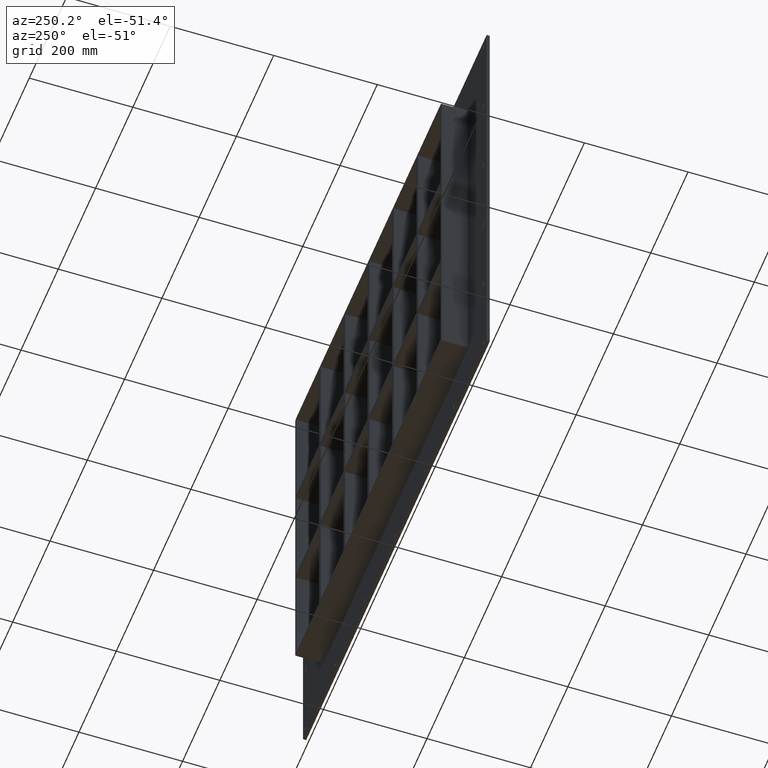
[diagram: clean part render]
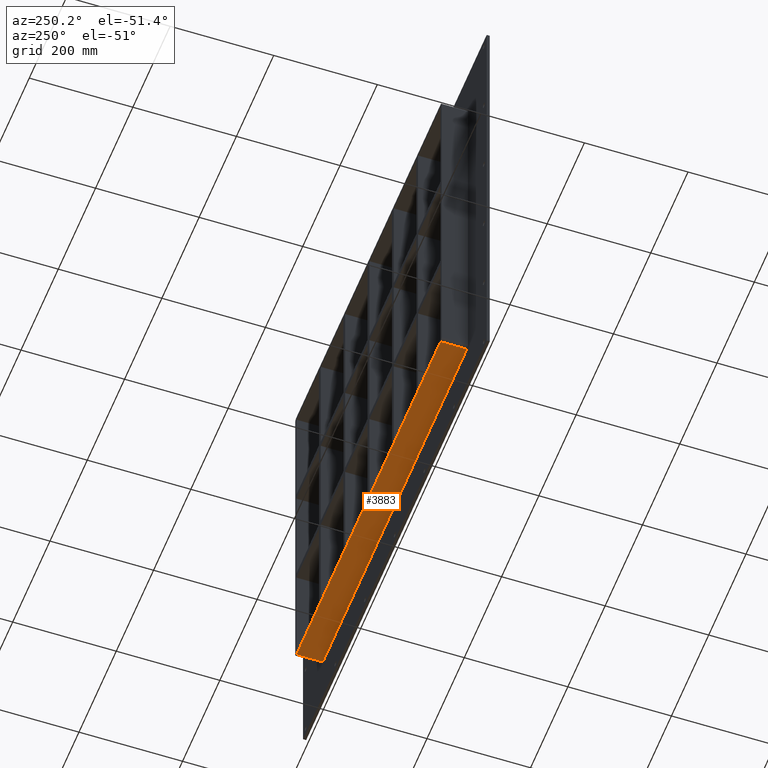
[diagram: same view with one face highlighted and labeled with its STEP entity id]
A machine part, auxiliary view. The second image highlights one B-rep face of the part: STEP entity #3883.
In plain terms, the highlighted planar face has unit normal (0, 0, -1).
Its self-contained STEP definition (entity closure, byte-faithful):
#1603=CARTESIAN_POINT('',(386.50000000000006,57.0,-345.00000000000006));
#1604=VERTEX_POINT('',#1603);
#1614=CARTESIAN_POINT('',(-386.5,57.0,-345.00000000000006));
#1615=VERTEX_POINT('',#1614);
#1616=CARTESIAN_POINT('',(386.50000000000006,57.0,-345.00000000000006));
#1617=DIRECTION('',(-1.0,0.0,0.0));
#1618=VECTOR('',#1617,773.0);
#1619=LINE('',#1616,#1618);
#1620=EDGE_CURVE('',#1604,#1615,#1619,.T.);
#3377=CARTESIAN_POINT('',(-386.50000000000006,6.000000000000001,-345.00000000000006));
#3378=VERTEX_POINT('',#3377);
#3388=CARTESIAN_POINT('',(386.50000000000006,6.000000000000001,-345.00000000000006));
#3389=VERTEX_POINT('',#3388);
#3390=CARTESIAN_POINT('',(386.50000000000006,6.000000000000001,-345.00000000000006));
#3391=DIRECTION('',(-1.0,0.0,0.0));
#3392=VECTOR('',#3391,773.0);
#3393=LINE('',#3390,#3392);
#3394=EDGE_CURVE('',#3389,#3378,#3393,.T.);
#3822=CARTESIAN_POINT('',(386.50000000000006,6.000000000000001,-345.00000000000006));
#3823=DIRECTION('',(0.0,1.0,0.0));
#3824=VECTOR('',#3823,51.0);
#3825=LINE('',#3822,#3824);
#3826=EDGE_CURVE('',#3389,#1604,#3825,.T.);
#3867=CARTESIAN_POINT('',(392.50000000000006,0.0,-345.00000000000006));
#3868=DIRECTION('',(0.0,0.0,-1.0));
#3869=DIRECTION('',(-1.0,0.0,0.0));
#3870=AXIS2_PLACEMENT_3D('',#3867,#3868,#3869);
#3871=PLANE('',#3870);
#3872=ORIENTED_EDGE('',*,*,#3394,.T.);
#3873=CARTESIAN_POINT('',(-386.50000000000006,57.0,-345.00000000000006));
#3874=DIRECTION('',(0.0,-1.0,0.0));
#3875=VECTOR('',#3874,51.0);
#3876=LINE('',#3873,#3875);
#3877=EDGE_CURVE('',#1615,#3378,#3876,.T.);
#3878=ORIENTED_EDGE('',*,*,#3877,.F.);
#3879=ORIENTED_EDGE('',*,*,#1620,.F.);
#3880=ORIENTED_EDGE('',*,*,#3826,.F.);
#3881=EDGE_LOOP('',(#3872,#3878,#3879,#3880));
#3882=FACE_OUTER_BOUND('',#3881,.T.);
#3883=ADVANCED_FACE('',(#3882),#3871,.T.);